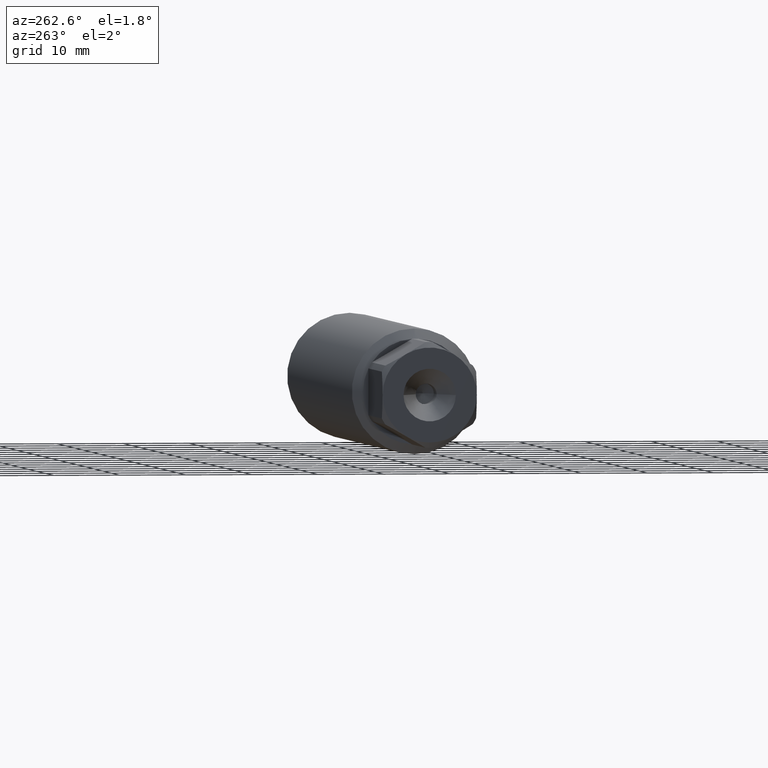
[diagram: clean part render]
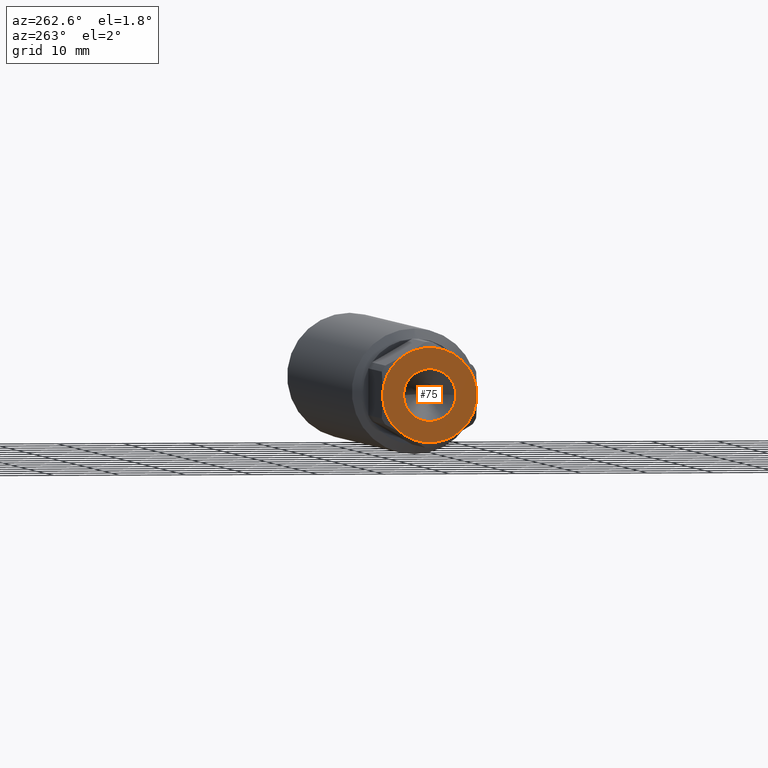
[diagram: same view with one face highlighted and labeled with its STEP entity id]
A machine part, auxiliary view. The second image highlights one B-rep face of the part: STEP entity #75.
In plain terms, the highlighted planar face has unit normal (1, 0, 0).
Its self-contained STEP definition (entity closure, byte-faithful):
#16 = VERTEX_POINT ( 'NONE', #1155 ) ;
#35 = CARTESIAN_POINT ( 'NONE',  ( -4.200000000000000200, 0.0000000000000000000, -0.2812500000000000000 ) ) ;
#62 = VERTEX_POINT ( 'NONE', #97 ) ;
#69 = CARTESIAN_POINT ( 'NONE',  ( -4.200000000000000200, 0.0000000000000000000, 0.0000000000000000000 ) ) ;
#75 = ADVANCED_FACE ( 'NONE', ( #138, #618 ), #1164, .F. ) ;
#88 = ORIENTED_EDGE ( 'NONE', *, *, #1207, .T. ) ;
#95 = CARTESIAN_POINT ( 'NONE',  ( -4.200000000000000200, 1.311955697888975600E-034, 0.0000000000000000000 ) ) ;
#97 = CARTESIAN_POINT ( 'NONE',  ( -4.200000000000000200, 0.1406250000000000800, -0.2435696448143733800 ) ) ;
#101 = DIRECTION ( 'NONE',  ( -1.000000000000000000, -0.0000000000000000000, -0.0000000000000000000 ) ) ;
#117 = ORIENTED_EDGE ( 'NONE', *, *, #476, .T. ) ;
#138 = FACE_BOUND ( 'NONE', #1255, .T. ) ;
#151 = DIRECTION ( 'NONE',  ( 0.0000000000000000000, 0.0000000000000000000, 1.000000000000000000 ) ) ;
#156 = CIRCLE ( 'NONE', #1110, 0.2812500000000000000 ) ;
#173 = VERTEX_POINT ( 'NONE', #794 ) ;
#177 = AXIS2_PLACEMENT_3D ( 'NONE', #663, #101, #772 ) ;
#180 = DIRECTION ( 'NONE',  ( 0.0000000000000000000, 1.000000000000000000, 0.0000000000000000000 ) ) ;
#184 = ORIENTED_EDGE ( 'NONE', *, *, #893, .T. ) ;
#208 = CARTESIAN_POINT ( 'NONE',  ( -4.200000000000000200, 1.311955697888975600E-034, 0.0000000000000000000 ) ) ;
#213 = CARTESIAN_POINT ( 'NONE',  ( -4.200000000000000200, -0.1406250000000001900, 0.2435696448143734600 ) ) ;
#238 = EDGE_CURVE ( 'NONE', #1025, #16, #528, .T. ) ;
#241 = ORIENTED_EDGE ( 'NONE', *, *, #501, .T. ) ;
#247 = CARTESIAN_POINT ( 'NONE',  ( -4.200000000000000200, -0.1406249999999999700, -0.2435696448143735700 ) ) ;
#280 = CARTESIAN_POINT ( 'NONE',  ( -4.200000000000000200, 0.1406249999999999200, 0.2435696448143734600 ) ) ;
#294 = DIRECTION ( 'NONE',  ( -1.000000000000000000, -0.0000000000000000000, -0.0000000000000000000 ) ) ;
#295 = VERTEX_POINT ( 'NONE', #609 ) ;
#306 = DIRECTION ( 'NONE',  ( 0.0000000000000000000, 1.000000000000000000, 0.0000000000000000000 ) ) ;
#318 = CARTESIAN_POINT ( 'NONE',  ( -4.200000000000000200, 0.0000000000000000000, 0.0000000000000000000 ) ) ;
#320 = DIRECTION ( 'NONE',  ( 1.000000000000000000, 0.0000000000000000000, 0.0000000000000000000 ) ) ;
#328 = AXIS2_PLACEMENT_3D ( 'NONE', #665, #320, #511 ) ;
#333 = CIRCLE ( 'NONE', #660, 0.1562500000000000300 ) ;
#342 = CARTESIAN_POINT ( 'NONE',  ( -4.200000000000000200, 0.0000000000000000000, 0.0000000000000000000 ) ) ;
#355 = EDGE_LOOP ( 'NONE', ( #1111, #241, #864, #720, #117, #88, #727 ) ) ;
#357 = VERTEX_POINT ( 'NONE', #748 ) ;
#366 = DIRECTION ( 'NONE',  ( -1.000000000000000000, -0.0000000000000000000, -0.0000000000000000000 ) ) ;
#367 = DIRECTION ( 'NONE',  ( -1.000000000000000000, -0.0000000000000000000, -0.0000000000000000000 ) ) ;
#403 = DIRECTION ( 'NONE',  ( 0.0000000000000000000, 0.0000000000000000000, 1.000000000000000000 ) ) ;
#441 = DIRECTION ( 'NONE',  ( 0.0000000000000000000, 0.0000000000000000000, 1.000000000000000000 ) ) ;
#476 = EDGE_CURVE ( 'NONE', #504, #357, #156, .T. ) ;
#501 = EDGE_CURVE ( 'NONE', #16, #62, #966, .T. ) ;
#504 = VERTEX_POINT ( 'NONE', #247 ) ;
#511 = DIRECTION ( 'NONE',  ( 0.0000000000000000000, 0.0000000000000000000, -1.000000000000000000 ) ) ;
#528 = CIRCLE ( 'NONE', #786, 0.2812500000000000000 ) ;
#608 = CIRCLE ( 'NONE', #902, 0.2812500000000000000 ) ;
#609 = CARTESIAN_POINT ( 'NONE',  ( -4.200000000000000200, 0.1562500000000000000, 1.913510623667739500E-017 ) ) ;
#618 = FACE_OUTER_BOUND ( 'NONE', #355, .T. ) ;
#643 = VERTEX_POINT ( 'NONE', #213 ) ;
#648 = CIRCLE ( 'NONE', #177, 0.2812500000000000000 ) ;
#660 = AXIS2_PLACEMENT_3D ( 'NONE', #95, #762, #180 ) ;
#663 = CARTESIAN_POINT ( 'NONE',  ( -4.200000000000000200, 0.0000000000000000000, 0.0000000000000000000 ) ) ;
#665 = CARTESIAN_POINT ( 'NONE',  ( -4.200000000000000200, 0.2812500000000000000, 0.0000000000000000000 ) ) ;
#720 = ORIENTED_EDGE ( 'NONE', *, *, #1015, .T. ) ;
#726 = DIRECTION ( 'NONE',  ( -1.000000000000000000, -0.0000000000000000000, -0.0000000000000000000 ) ) ;
#727 = ORIENTED_EDGE ( 'NONE', *, *, #849, .T. ) ;
#729 = AXIS2_PLACEMENT_3D ( 'NONE', #960, #367, #1066 ) ;
#748 = CARTESIAN_POINT ( 'NONE',  ( -4.200000000000000200, -0.2812500000000000600, -2.957312202238503200E-017 ) ) ;
#762 = DIRECTION ( 'NONE',  ( 1.000000000000000000, -2.897674320293680000E-017, -0.0000000000000000000 ) ) ;
#772 = DIRECTION ( 'NONE',  ( 0.0000000000000000000, 0.0000000000000000000, 1.000000000000000000 ) ) ;
#786 = AXIS2_PLACEMENT_3D ( 'NONE', #318, #1001, #403 ) ;
#794 = CARTESIAN_POINT ( 'NONE',  ( -4.200000000000000200, -0.1562500000000000000, 0.0000000000000000000 ) ) ;
#849 = EDGE_CURVE ( 'NONE', #643, #1025, #1238, .T. ) ;
#864 = ORIENTED_EDGE ( 'NONE', *, *, #1051, .T. ) ;
#881 = CARTESIAN_POINT ( 'NONE',  ( -4.200000000000000200, 0.0000000000000000000, 0.0000000000000000000 ) ) ;
#891 = DIRECTION ( 'NONE',  ( 1.000000000000000000, -2.897674320293680000E-017, -0.0000000000000000000 ) ) ;
#893 = EDGE_CURVE ( 'NONE', #173, #295, #1018, .T. ) ;
#902 = AXIS2_PLACEMENT_3D ( 'NONE', #959, #366, #1064 ) ;
#959 = CARTESIAN_POINT ( 'NONE',  ( -4.200000000000000200, 0.0000000000000000000, 0.0000000000000000000 ) ) ;
#960 = CARTESIAN_POINT ( 'NONE',  ( -4.200000000000000200, 0.0000000000000000000, 0.0000000000000000000 ) ) ;
#966 = CIRCLE ( 'NONE', #1234, 0.2812500000000000000 ) ;
#974 = DIRECTION ( 'NONE',  ( 0.0000000000000000000, 0.0000000000000000000, 1.000000000000000000 ) ) ;
#1001 = DIRECTION ( 'NONE',  ( -1.000000000000000000, -0.0000000000000000000, -0.0000000000000000000 ) ) ;
#1013 = EDGE_CURVE ( 'NONE', #295, #173, #333, .T. ) ;
#1015 = EDGE_CURVE ( 'NONE', #1017, #504, #1118, .T. ) ;
#1017 = VERTEX_POINT ( 'NONE', #35 ) ;
#1018 = CIRCLE ( 'NONE', #1222, 0.1562500000000000300 ) ;
#1025 = VERTEX_POINT ( 'NONE', #280 ) ;
#1039 = DIRECTION ( 'NONE',  ( -1.000000000000000000, -0.0000000000000000000, -0.0000000000000000000 ) ) ;
#1044 = ORIENTED_EDGE ( 'NONE', *, *, #1013, .T. ) ;
#1051 = EDGE_CURVE ( 'NONE', #62, #1017, #648, .T. ) ;
#1064 = DIRECTION ( 'NONE',  ( 0.0000000000000000000, 0.0000000000000000000, 1.000000000000000000 ) ) ;
#1066 = DIRECTION ( 'NONE',  ( 0.0000000000000000000, 0.0000000000000000000, 1.000000000000000000 ) ) ;
#1110 = AXIS2_PLACEMENT_3D ( 'NONE', #69, #726, #151 ) ;
#1111 = ORIENTED_EDGE ( 'NONE', *, *, #238, .T. ) ;
#1118 = CIRCLE ( 'NONE', #729, 0.2812500000000000000 ) ;
#1151 = AXIS2_PLACEMENT_3D ( 'NONE', #881, #294, #974 ) ;
#1155 = CARTESIAN_POINT ( 'NONE',  ( -4.200000000000000200, 0.2812500000000000600, 2.957312202238503200E-017 ) ) ;
#1164 = PLANE ( 'NONE',  #328 ) ;
#1207 = EDGE_CURVE ( 'NONE', #357, #643, #608, .T. ) ;
#1222 = AXIS2_PLACEMENT_3D ( 'NONE', #208, #891, #306 ) ;
#1234 = AXIS2_PLACEMENT_3D ( 'NONE', #342, #1039, #441 ) ;
#1238 = CIRCLE ( 'NONE', #1151, 0.2812500000000000000 ) ;
#1255 = EDGE_LOOP ( 'NONE', ( #184, #1044 ) ) ;